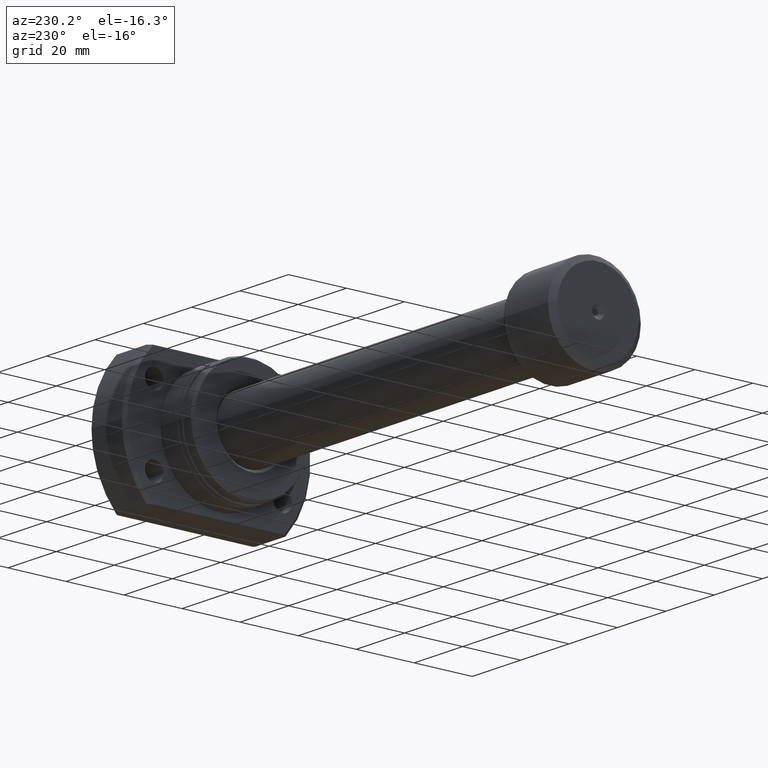
[diagram: clean part render]
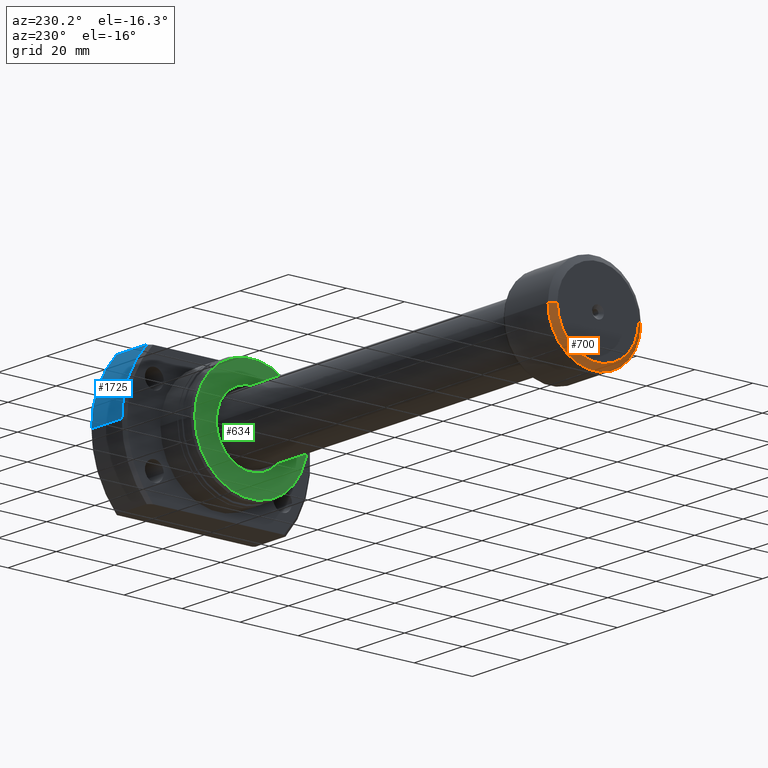
[diagram: same view with three faces highlighted in distinct colors, each labeled with its STEP entity id]
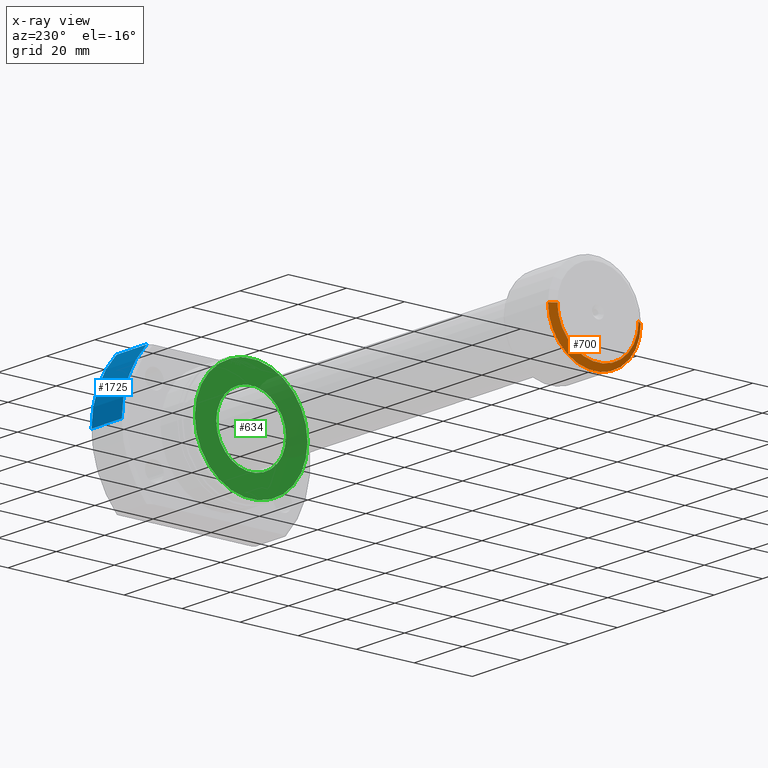
[diagram: x-ray of the same camera — body ghosted, the three highlighted faces saturated]
A machine part, auxiliary view with three faces highlighted in distinct colors.
The next image is the same camera in x-ray (body ghosted, the three faces saturated) — at least one of them is partly hidden behind the body in this view.
Their STEP definitions:

[orange] entity #700 — the highlighted conical surface has half-angle 53.13 deg.
#9 = ORIENTED_EDGE ( 'NONE', *, *, #2296, .T. ) ;
#185 = CARTESIAN_POINT ( 'NONE',  ( 1.564769593716625324E-15, 1.673587304766748118E-32, 0.000000000000000000 ) ) ;
#261 = EDGE_CURVE ( 'NONE', #391, #2558, #559, .T. ) ;
#336 = CARTESIAN_POINT ( 'NONE',  ( 1.415033668626956010E-15, 14.00000000000000000, 0.000000000000000000 ) ) ;
#356 = CARTESIAN_POINT ( 'NONE',  ( 1.500000000000001998, 1.604313483103600935E-17, 0.000000000000000000 ) ) ;
#362 = CIRCLE ( 'NONE', #2677, 14.00000000000000000 ) ;
#370 = CARTESIAN_POINT ( 'NONE',  ( 1.500000000000002220, -16.00000000000000000, 1.959434878635765526E-15 ) ) ;
#391 = VERTEX_POINT ( 'NONE', #924 ) ;
#510 = CARTESIAN_POINT ( 'NONE',  ( 1.714505518806294638E-15, -14.00000000000000000, 1.836970198721029589E-15 ) ) ;
#559 = LINE ( 'NONE', #336, #1946 ) ;
#693 = ORIENTED_EDGE ( 'NONE', *, *, #261, .T. ) ;
#700 = ADVANCED_FACE ( 'NONE', ( #2134 ), #2059, .T. ) ;
#705 = DIRECTION ( 'NONE',  ( 1.069542322069066109E-17, -1.000000000000000000, 0.000000000000000000 ) ) ;
#840 = CIRCLE ( 'NONE', #2333, 16.00000000000000000 ) ;
#924 = CARTESIAN_POINT ( 'NONE',  ( 1.415033668626956010E-15, 14.00000000000000000, 0.000000000000000000 ) ) ;
#944 = EDGE_CURVE ( 'NONE', #391, #2532, #362, .T. ) ;
#1082 = DIRECTION ( 'NONE',  ( 1.355252715606880543E-17, -1.000000000000000000, 0.000000000000000000 ) ) ;
#1298 = EDGE_LOOP ( 'NONE', ( #1303, #2196, #693, #9 ) ) ;
#1303 = ORIENTED_EDGE ( 'NONE', *, *, #1533, .F. ) ;
#1446 = LINE ( 'NONE', #1984, #1541 ) ;
#1533 = EDGE_CURVE ( 'NONE', #2532, #2810, #1446, .T. ) ;
#1541 = VECTOR ( 'NONE', #2474, 999.9999999999998863 ) ;
#1648 = CARTESIAN_POINT ( 'NONE',  ( 1.564769593716625324E-15, 1.673587304766748118E-32, 0.000000000000000000 ) ) ;
#1921 = DIRECTION ( 'NONE',  ( -1.000000000000000000, -1.069542322069065801E-17, -0.000000000000000000 ) ) ;
#1946 = VECTOR ( 'NONE', #2303, 999.9999999999998863 ) ;
#1984 = CARTESIAN_POINT ( 'NONE',  ( 1.714505518806294638E-15, -14.00000000000000000, 1.714505518806294638E-15 ) ) ;
#2059 = CONICAL_SURFACE ( 'NONE', #2527, 14.00000000000000000, 0.9272952180016120760 ) ;
#2134 = FACE_OUTER_BOUND ( 'NONE', #1298, .T. ) ;
#2148 = DIRECTION ( 'NONE',  ( 1.000000000000000000, 1.069542322069065801E-17, 0.000000000000000000 ) ) ;
#2167 = DIRECTION ( 'NONE',  ( -1.069542322069066109E-17, 1.000000000000000000, 0.000000000000000000 ) ) ;
#2196 = ORIENTED_EDGE ( 'NONE', *, *, #944, .F. ) ;
#2255 = DIRECTION ( 'NONE',  ( -1.000000000000000000, -1.069542322069065801E-17, -0.000000000000000000 ) ) ;
#2296 = EDGE_CURVE ( 'NONE', #2558, #2810, #840, .T. ) ;
#2303 = DIRECTION ( 'NONE',  ( 0.6000000000000001998, 0.7999999999999999334, 0.000000000000000000 ) ) ;
#2333 = AXIS2_PLACEMENT_3D ( 'NONE', #356, #2255, #1082 ) ;
#2474 = DIRECTION ( 'NONE',  ( 0.6000000000000001998, -0.7999999999999999334, 9.797174393178826150E-17 ) ) ;
#2485 = CARTESIAN_POINT ( 'NONE',  ( 1.500000000000001776, 16.00000000000000000, 0.000000000000000000 ) ) ;
#2527 = AXIS2_PLACEMENT_3D ( 'NONE', #185, #2148, #2167 ) ;
#2532 = VERTEX_POINT ( 'NONE', #510 ) ;
#2558 = VERTEX_POINT ( 'NONE', #2485 ) ;
#2677 = AXIS2_PLACEMENT_3D ( 'NONE', #1648, #1921, #705 ) ;
#2810 = VERTEX_POINT ( 'NONE', #370 ) ;

[blue] entity #1725 — the highlighted cylindrical surface (partial cylindrical patch) has radius 32.5 mm, axis along (1, 0, 0).
#34 = VERTEX_POINT ( 'NONE', #480 ) ;
#108 = DIRECTION ( 'NONE',  ( 1.000000000000000000, 1.335978326342566810E-17, -0.000000000000000000 ) ) ;
#151 = LINE ( 'NONE', #2624, #672 ) ;
#209 = AXIS2_PLACEMENT_3D ( 'NONE', #2259, #2312, #2760 ) ;
#294 = VERTEX_POINT ( 'NONE', #1109 ) ;
#306 = LINE ( 'NONE', #2008, #2641 ) ;
#313 = CIRCLE ( 'NONE', #570, 32.49999999999991473 ) ;
#320 = AXIS2_PLACEMENT_3D ( 'NONE', #331, #108, #1309 ) ;
#331 = CARTESIAN_POINT ( 'NONE',  ( 27.00000000000008527, 3.607141481124941789E-16, 0.000000000000000000 ) ) ;
#363 = CARTESIAN_POINT ( 'NONE',  ( 14.49999999999999289, 1.937168573196720858E-16, 0.000000000000000000 ) ) ;
#480 = CARTESIAN_POINT ( 'NONE',  ( 14.49999999999999289, 32.49999999999991473, 0.000000000000000000 ) ) ;
#561 = DIRECTION ( 'NONE',  ( 1.000000000000000000, 1.335978326342566810E-17, -0.000000000000000000 ) ) ;
#570 = AXIS2_PLACEMENT_3D ( 'NONE', #363, #2050, #2353 ) ;
#672 = VECTOR ( 'NONE', #2807, 1000.000000000000000 ) ;
#678 = CARTESIAN_POINT ( 'NONE',  ( 27.00000000000008527, 32.49999999999991473, 0.000000000000000000 ) ) ;
#774 = EDGE_CURVE ( 'NONE', #2802, #294, #151, .T. ) ;
#1109 = CARTESIAN_POINT ( 'NONE',  ( 27.00000000000007105, 23.92174742781127961, 22.00000000000000000 ) ) ;
#1280 = ORIENTED_EDGE ( 'NONE', *, *, #1739, .F. ) ;
#1309 = DIRECTION ( 'NONE',  ( 0.000000000000000000, 1.000000000000000000, 0.000000000000000000 ) ) ;
#1319 = EDGE_CURVE ( 'NONE', #34, #2802, #313, .T. ) ;
#1621 = CARTESIAN_POINT ( 'NONE',  ( 14.49999999999999289, 23.92174742781164198, 22.00000000000000000 ) ) ;
#1725 = ADVANCED_FACE ( 'NONE', ( #2521 ), #2586, .T. ) ;
#1739 = EDGE_CURVE ( 'NONE', #2486, #294, #2896, .T. ) ;
#1783 = ORIENTED_EDGE ( 'NONE', *, *, #2687, .F. ) ;
#2008 = CARTESIAN_POINT ( 'NONE',  ( 27.50000000000000355, 32.49999999999991473, 0.000000000000000000 ) ) ;
#2050 = DIRECTION ( 'NONE',  ( 1.000000000000000000, 1.335978326342566810E-17, -0.000000000000000000 ) ) ;
#2250 = ORIENTED_EDGE ( 'NONE', *, *, #1319, .T. ) ;
#2259 = CARTESIAN_POINT ( 'NONE',  ( 27.50000000000000355, 3.673940397442059375E-16, 0.000000000000000000 ) ) ;
#2312 = DIRECTION ( 'NONE',  ( 1.000000000000000000, 1.335978326342566810E-17, -0.000000000000000000 ) ) ;
#2353 = DIRECTION ( 'NONE',  ( 0.000000000000000000, 1.000000000000000000, 0.000000000000000000 ) ) ;
#2486 = VERTEX_POINT ( 'NONE', #678 ) ;
#2521 = FACE_OUTER_BOUND ( 'NONE', #2956, .T. ) ;
#2586 = CYLINDRICAL_SURFACE ( 'NONE', #209, 32.49999999999991473 ) ;
#2624 = CARTESIAN_POINT ( 'NONE',  ( -2.428612866367529932E-13, 23.92174742781206120, 22.00000000000000000 ) ) ;
#2641 = VECTOR ( 'NONE', #561, 1000.000000000000000 ) ;
#2687 = EDGE_CURVE ( 'NONE', #34, #2486, #306, .T. ) ;
#2703 = ORIENTED_EDGE ( 'NONE', *, *, #774, .T. ) ;
#2760 = DIRECTION ( 'NONE',  ( 0.000000000000000000, 1.000000000000000000, 0.000000000000000000 ) ) ;
#2802 = VERTEX_POINT ( 'NONE', #1621 ) ;
#2807 = DIRECTION ( 'NONE',  ( 1.000000000000000000, -2.886466111666351885E-14, -0.000000000000000000 ) ) ;
#2896 = CIRCLE ( 'NONE', #320, 32.49999999999991473 ) ;
#2956 = EDGE_LOOP ( 'NONE', ( #1783, #2250, #2703, #1280 ) ) ;

[green] entity #634 — the highlighted planar face has unit normal (1, 0, 0).
#42 = EDGE_LOOP ( 'NONE', ( #54, #1794 ) ) ;
#54 = ORIENTED_EDGE ( 'NONE', *, *, #449, .T. ) ;
#144 = DIRECTION ( 'NONE',  ( -1.335978326342566194E-17, 1.000000000000000000, 0.000000000000000000 ) ) ;
#186 = ORIENTED_EDGE ( 'NONE', *, *, #1482, .F. ) ;
#322 = CARTESIAN_POINT ( 'NONE',  ( 1.276393530284440735E-15, -11.99999999999970335, 0.000000000000000000 ) ) ;
#325 = CIRCLE ( 'NONE', #3170, 12.00000000000039613 ) ;
#434 = FACE_OUTER_BOUND ( 'NONE', #2528, .T. ) ;
#449 = EDGE_CURVE ( 'NONE', #2736, #865, #1847, .T. ) ;
#452 = VERTEX_POINT ( 'NONE', #2194 ) ;
#523 = CARTESIAN_POINT ( 'NONE',  ( 1.059553095787339848E-15, -2.954820703888036224E-29, 0.000000000000000000 ) ) ;
#626 = PLANE ( 'NONE',  #1916 ) ;
#634 = ADVANCED_FACE ( 'NONE', ( #3151, #434 ), #626, .F. ) ;
#668 = CARTESIAN_POINT ( 'NONE',  ( 3.469446951953614189E-15, 4.814824860968089633E-32, 0.000000000000000000 ) ) ;
#776 = AXIS2_PLACEMENT_3D ( 'NONE', #668, #1371, #144 ) ;
#778 = VERTEX_POINT ( 'NONE', #1077 ) ;
#822 = CARTESIAN_POINT ( 'NONE',  ( 1.059553095787339848E-15, -2.954820703888036224E-29, 0.000000000000000000 ) ) ;
#839 = DIRECTION ( 'NONE',  ( 1.000000000000000000, 1.335978326342566810E-17, -0.000000000000000000 ) ) ;
#865 = VERTEX_POINT ( 'NONE', #1860 ) ;
#898 = ORIENTED_EDGE ( 'NONE', *, *, #1454, .F. ) ;
#1077 = CARTESIAN_POINT ( 'NONE',  ( 3.209964561148554822E-15, 19.42264973081037027, 0.000000000000000000 ) ) ;
#1183 = DIRECTION ( 'NONE',  ( 1.000000000000000000, 1.335978326342566810E-17, -0.000000000000000000 ) ) ;
#1371 = DIRECTION ( 'NONE',  ( 1.000000000000000000, 1.335978326342566810E-17, -0.000000000000000000 ) ) ;
#1454 = EDGE_CURVE ( 'NONE', #452, #778, #2846, .T. ) ;
#1482 = EDGE_CURVE ( 'NONE', #778, #452, #3159, .T. ) ;
#1676 = DIRECTION ( 'NONE',  ( 1.000000000000000000, 1.335978326342566810E-17, -0.000000000000000000 ) ) ;
#1794 = ORIENTED_EDGE ( 'NONE', *, *, #2765, .T. ) ;
#1847 = CIRCLE ( 'NONE', #2204, 12.00000000000039613 ) ;
#1855 = AXIS2_PLACEMENT_3D ( 'NONE', #2409, #2634, #1882 ) ;
#1860 = CARTESIAN_POINT ( 'NONE',  ( 8.427126612902389615E-16, 12.00000000000039613, 1.469576158976872462E-15 ) ) ;
#1882 = DIRECTION ( 'NONE',  ( -1.335978326342566194E-17, 1.000000000000000000, 0.000000000000000000 ) ) ;
#1887 = CARTESIAN_POINT ( 'NONE',  ( 1.059553095787363711E-15, 1.415539971581087523E-32, 0.000000000000000000 ) ) ;
#1916 = AXIS2_PLACEMENT_3D ( 'NONE', #1887, #1183, #3139 ) ;
#2194 = CARTESIAN_POINT ( 'NONE',  ( 3.728929342758673161E-15, -19.42264973081037027, 2.413941090337209377E-15 ) ) ;
#2204 = AXIS2_PLACEMENT_3D ( 'NONE', #523, #1676, #2232 ) ;
#2232 = DIRECTION ( 'NONE',  ( -1.335978326342567272E-17, 1.000000000000000000, 0.000000000000000000 ) ) ;
#2409 = CARTESIAN_POINT ( 'NONE',  ( 3.469446951953614189E-15, 4.814824860968089633E-32, 0.000000000000000000 ) ) ;
#2528 = EDGE_LOOP ( 'NONE', ( #186, #898 ) ) ;
#2634 = DIRECTION ( 'NONE',  ( 1.000000000000000000, 1.335978326342566810E-17, -0.000000000000000000 ) ) ;
#2736 = VERTEX_POINT ( 'NONE', #322 ) ;
#2765 = EDGE_CURVE ( 'NONE', #865, #2736, #325, .T. ) ;
#2846 = CIRCLE ( 'NONE', #1855, 19.42264973081037027 ) ;
#3022 = DIRECTION ( 'NONE',  ( -1.335978326342567272E-17, 1.000000000000000000, 0.000000000000000000 ) ) ;
#3139 = DIRECTION ( 'NONE',  ( -1.335978326342566810E-17, 1.000000000000000000, 0.000000000000000000 ) ) ;
#3151 = FACE_BOUND ( 'NONE', #42, .T. ) ;
#3159 = CIRCLE ( 'NONE', #776, 19.42264973081037027 ) ;
#3170 = AXIS2_PLACEMENT_3D ( 'NONE', #822, #839, #3022 ) ;